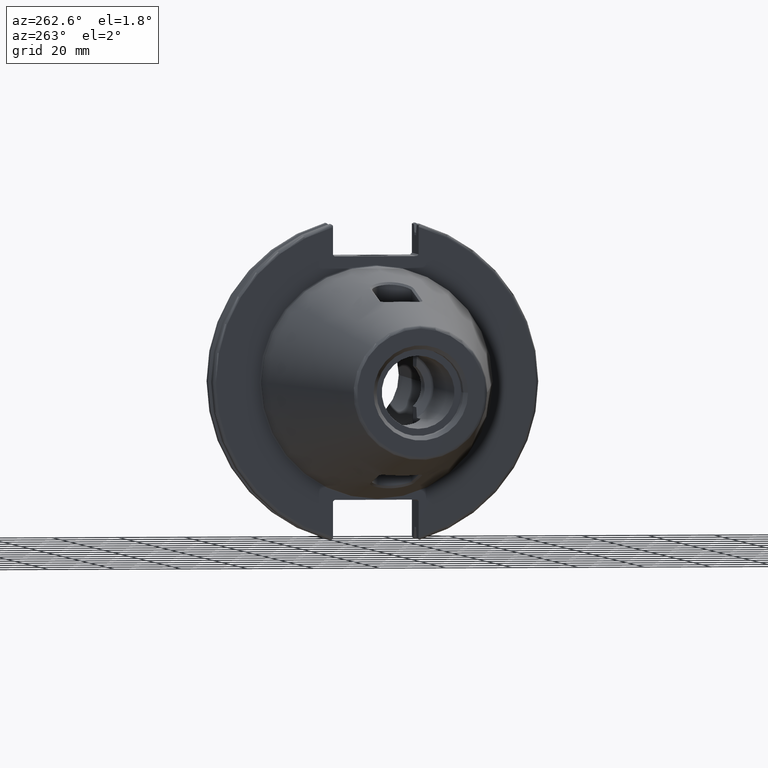
[diagram: clean part render]
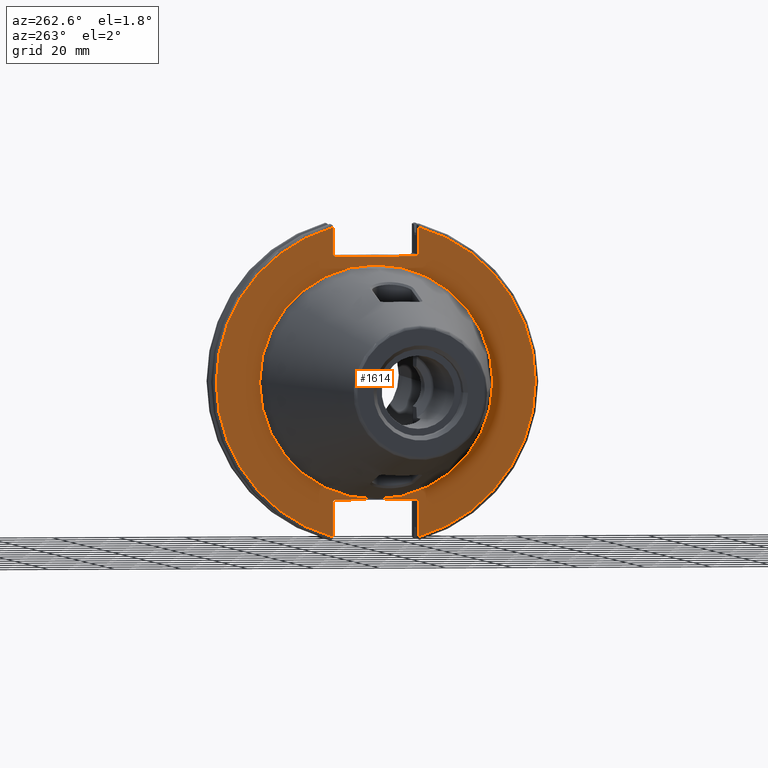
[diagram: same view with one face highlighted and labeled with its STEP entity id]
A machine part, auxiliary view. The second image highlights one B-rep face of the part: STEP entity #1614.
In plain terms, the highlighted planar face has unit normal (-1, 0, 0).
Its self-contained STEP definition (entity closure, byte-faithful):
#30=FACE_BOUND('',#325,.T.);
#70=CIRCLE('',#1748,35.125);
#72=CIRCLE('',#1751,48.2125);
#73=CIRCLE('',#1752,48.2125);
#158=PLANE('',#1750);
#228=FACE_OUTER_BOUND('',#324,.T.);
#324=EDGE_LOOP('',(#1311,#1312,#1313,#1314,#1315,#1316,#1317,#1318,#1319,
#1320,#1321,#1322));
#325=EDGE_LOOP('',(#1323));
#486=LINE('',#3223,#595);
#487=LINE('',#3225,#596);
#488=LINE('',#3227,#597);
#489=LINE('',#3229,#598);
#490=LINE('',#3231,#599);
#491=LINE('',#3235,#600);
#492=LINE('',#3237,#601);
#493=LINE('',#3239,#602);
#494=LINE('',#3241,#603);
#495=LINE('',#3242,#604);
#595=VECTOR('',#2019,10.);
#596=VECTOR('',#2020,10.);
#597=VECTOR('',#2021,10.);
#598=VECTOR('',#2022,10.);
#599=VECTOR('',#2023,10.);
#600=VECTOR('',#2026,10.);
#601=VECTOR('',#2027,10.);
#602=VECTOR('',#2028,10.);
#603=VECTOR('',#2029,10.);
#604=VECTOR('',#2030,10.);
#740=VERTEX_POINT('',#3214);
#741=VERTEX_POINT('',#3219);
#742=VERTEX_POINT('',#3220);
#743=VERTEX_POINT('',#3222);
#744=VERTEX_POINT('',#3224);
#745=VERTEX_POINT('',#3226);
#746=VERTEX_POINT('',#3228);
#747=VERTEX_POINT('',#3230);
#748=VERTEX_POINT('',#3232);
#749=VERTEX_POINT('',#3234);
#750=VERTEX_POINT('',#3236);
#751=VERTEX_POINT('',#3238);
#752=VERTEX_POINT('',#3240);
#945=EDGE_CURVE('',#740,#740,#70,.T.);
#947=EDGE_CURVE('',#741,#742,#72,.T.);
#948=EDGE_CURVE('',#741,#743,#486,.T.);
#949=EDGE_CURVE('',#744,#743,#487,.T.);
#950=EDGE_CURVE('',#744,#745,#488,.T.);
#951=EDGE_CURVE('',#746,#745,#489,.T.);
#952=EDGE_CURVE('',#746,#747,#490,.T.);
#953=EDGE_CURVE('',#748,#747,#73,.T.);
#954=EDGE_CURVE('',#748,#749,#491,.T.);
#955=EDGE_CURVE('',#750,#749,#492,.T.);
#956=EDGE_CURVE('',#750,#751,#493,.T.);
#957=EDGE_CURVE('',#752,#751,#494,.T.);
#958=EDGE_CURVE('',#752,#742,#495,.T.);
#1311=ORIENTED_EDGE('',*,*,#947,.F.);
#1312=ORIENTED_EDGE('',*,*,#948,.T.);
#1313=ORIENTED_EDGE('',*,*,#949,.F.);
#1314=ORIENTED_EDGE('',*,*,#950,.T.);
#1315=ORIENTED_EDGE('',*,*,#951,.F.);
#1316=ORIENTED_EDGE('',*,*,#952,.T.);
#1317=ORIENTED_EDGE('',*,*,#953,.F.);
#1318=ORIENTED_EDGE('',*,*,#954,.T.);
#1319=ORIENTED_EDGE('',*,*,#955,.F.);
#1320=ORIENTED_EDGE('',*,*,#956,.T.);
#1321=ORIENTED_EDGE('',*,*,#957,.F.);
#1322=ORIENTED_EDGE('',*,*,#958,.T.);
#1323=ORIENTED_EDGE('',*,*,#945,.F.);
#1614=ADVANCED_FACE('',(#228,#30),#158,.T.);
#1748=AXIS2_PLACEMENT_3D('',#3216,#2011,#2012);
#1750=AXIS2_PLACEMENT_3D('',#3218,#2015,#2016);
#1751=AXIS2_PLACEMENT_3D('',#3221,#2017,#2018);
#1752=AXIS2_PLACEMENT_3D('',#3233,#2024,#2025);
#2011=DIRECTION('center_axis',(-1.,0.,0.));
#2012=DIRECTION('ref_axis',(0.,-1.,1.83697019872103E-16));
#2015=DIRECTION('center_axis',(-1.,0.,0.));
#2016=DIRECTION('ref_axis',(0.,0.,1.));
#2017=DIRECTION('center_axis',(1.,0.,0.));
#2018=DIRECTION('ref_axis',(0.,-1.,1.60812264967664E-16));
#2019=DIRECTION('',(0.,0.,-1.));
#2020=DIRECTION('',(0.,-0.707106781186549,0.707106781186546));
#2021=DIRECTION('',(0.,1.,0.));
#2022=DIRECTION('',(0.,-0.707106781186549,-0.707106781186546));
#2023=DIRECTION('',(0.,0.,1.));
#2024=DIRECTION('center_axis',(1.,0.,0.));
#2025=DIRECTION('ref_axis',(0.,1.,-6.12323399573677E-17));
#2026=DIRECTION('',(0.,0.,1.));
#2027=DIRECTION('',(0.,0.707106781186549,-0.707106781186546));
#2028=DIRECTION('',(0.,-1.,0.));
#2029=DIRECTION('',(0.,0.707106781186549,0.707106781186546));
#2030=DIRECTION('',(0.,0.,-1.));
#3214=CARTESIAN_POINT('',(3.175,-4.30157188200508E-15,35.125));
#3216=CARTESIAN_POINT('Origin',(3.175,0.,0.));
#3218=CARTESIAN_POINT('Origin',(3.175,49.2125,0.));
#3219=CARTESIAN_POINT('',(3.175,-12.95,46.4407434937254));
#3220=CARTESIAN_POINT('',(3.175,-12.95,-46.4407434937254));
#3221=CARTESIAN_POINT('Origin',(3.175,0.,0.));
#3222=CARTESIAN_POINT('',(3.175,-12.95,38.219));
#3223=CARTESIAN_POINT('',(3.175,-12.95,18.8595));
#3224=CARTESIAN_POINT('',(3.175,-12.45,37.719));
#3225=CARTESIAN_POINT('',(3.175,12.2703750000001,12.998625));
#3226=CARTESIAN_POINT('',(3.175,12.45,37.719));
#3227=CARTESIAN_POINT('',(3.175,24.60625,37.719));
#3228=CARTESIAN_POINT('',(3.175,12.95,38.219));
#3229=CARTESIAN_POINT('',(3.175,12.335875,37.604875));
#3230=CARTESIAN_POINT('',(3.175,12.95,46.4407434937254));
#3231=CARTESIAN_POINT('',(3.175,12.95,18.8595));
#3232=CARTESIAN_POINT('',(3.175,12.95,-46.4407434937254));
#3233=CARTESIAN_POINT('Origin',(3.175,0.,0.));
#3234=CARTESIAN_POINT('',(3.175,12.95,-35.806));
#3235=CARTESIAN_POINT('',(3.175,12.95,-17.653));
#3236=CARTESIAN_POINT('',(3.175,12.45,-35.306));
#3237=CARTESIAN_POINT('',(3.175,12.939125,-35.795125));
#3238=CARTESIAN_POINT('',(3.175,-12.45,-35.306));
#3239=CARTESIAN_POINT('',(3.175,24.60625,-35.306));
#3240=CARTESIAN_POINT('',(3.175,-12.95,-35.806));
#3241=CARTESIAN_POINT('',(3.175,11.6671250000001,-11.188875));
#3242=CARTESIAN_POINT('',(3.175,-12.95,-17.653));